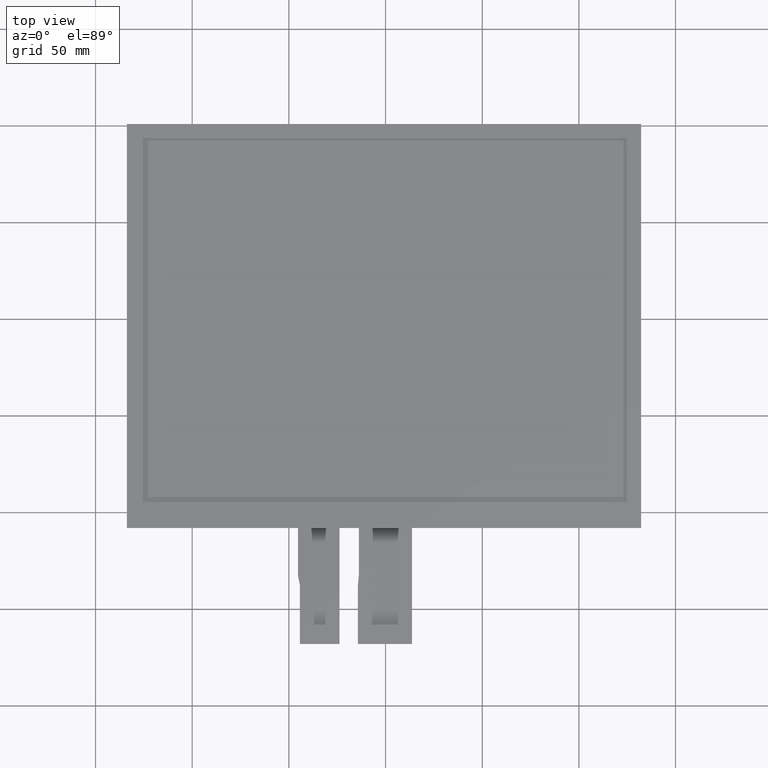
[diagram: clean part render]
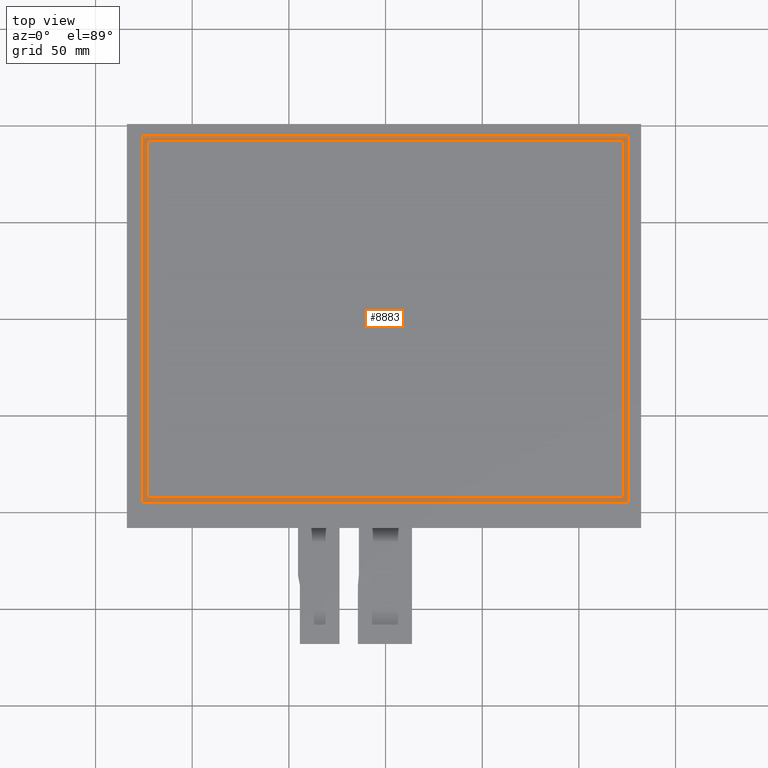
[diagram: same view with one face highlighted and labeled with its STEP entity id]
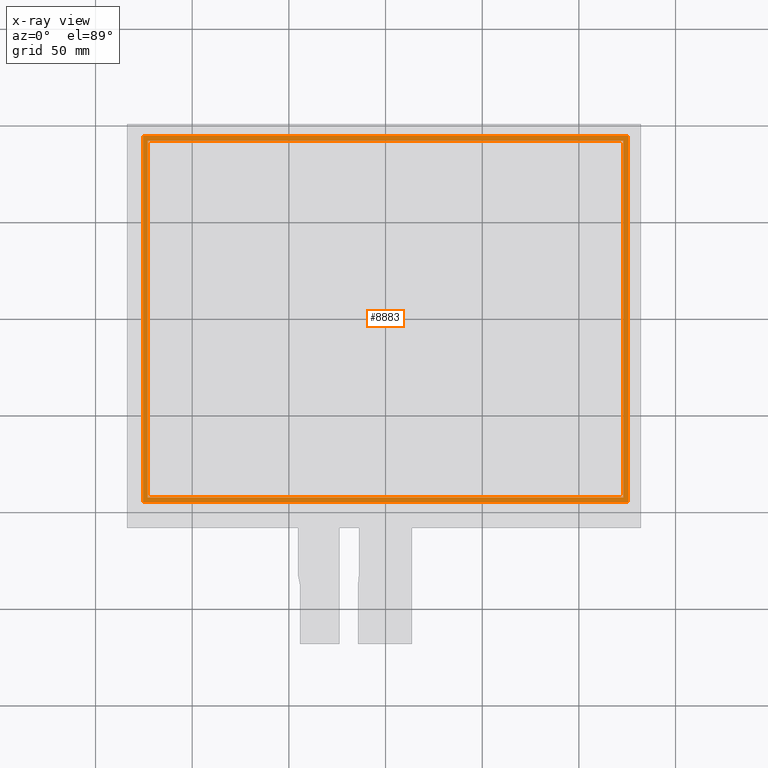
[diagram: x-ray of the same camera — body ghosted, the highlighted face saturated]
A machine part, top view. The second image highlights one B-rep face of the part: STEP entity #8883.
The next image is the same camera in x-ray: the body ghosted, the highlighted face saturated — about 0% of this face is hidden behind the body in this view.
In plain terms, the highlighted planar face has unit normal (0, 0, -1).
Its self-contained STEP definition (entity closure, byte-faithful):
#131=FACE_BOUND('',#1390,.T.);
#545=PLANE('',#9333);
#967=FACE_OUTER_BOUND('',#1389,.T.);
#1389=EDGE_LOOP('',(#8417,#8418,#8419,#8420));
#1390=EDGE_LOOP('',(#8421,#8422,#8423,#8424));
#2607=LINE('',#13877,#3847);
#2611=LINE('',#13884,#3851);
#2614=LINE('',#13890,#3854);
#2616=LINE('',#13893,#3856);
#2619=LINE('',#13901,#3859);
#2623=LINE('',#13908,#3863);
#2626=LINE('',#13914,#3866);
#2628=LINE('',#13917,#3868);
#3847=VECTOR('',#11379,10.);
#3851=VECTOR('',#11385,10.);
#3854=VECTOR('',#11390,10.);
#3856=VECTOR('',#11394,10.);
#3859=VECTOR('',#11399,10.);
#3863=VECTOR('',#11405,10.);
#3866=VECTOR('',#11410,10.);
#3868=VECTOR('',#11414,10.);
#4699=VERTEX_POINT('',#13874);
#4700=VERTEX_POINT('',#13876);
#4702=VERTEX_POINT('',#13882);
#4704=VERTEX_POINT('',#13888);
#4707=VERTEX_POINT('',#13898);
#4708=VERTEX_POINT('',#13900);
#4710=VERTEX_POINT('',#13906);
#4712=VERTEX_POINT('',#13912);
#5935=EDGE_CURVE('',#4699,#4700,#2607,.T.);
#5939=EDGE_CURVE('',#4702,#4699,#2611,.T.);
#5942=EDGE_CURVE('',#4704,#4702,#2614,.T.);
#5944=EDGE_CURVE('',#4700,#4704,#2616,.T.);
#5947=EDGE_CURVE('',#4707,#4708,#2619,.T.);
#5951=EDGE_CURVE('',#4710,#4707,#2623,.T.);
#5954=EDGE_CURVE('',#4712,#4710,#2626,.T.);
#5956=EDGE_CURVE('',#4708,#4712,#2628,.T.);
#8417=ORIENTED_EDGE('',*,*,#5956,.F.);
#8418=ORIENTED_EDGE('',*,*,#5947,.F.);
#8419=ORIENTED_EDGE('',*,*,#5951,.F.);
#8420=ORIENTED_EDGE('',*,*,#5954,.F.);
#8421=ORIENTED_EDGE('',*,*,#5944,.F.);
#8422=ORIENTED_EDGE('',*,*,#5935,.F.);
#8423=ORIENTED_EDGE('',*,*,#5939,.F.);
#8424=ORIENTED_EDGE('',*,*,#5942,.F.);
#8883=ADVANCED_FACE('',(#967,#131),#545,.F.);
#9333=AXIS2_PLACEMENT_3D('',#13918,#11415,#11416);
#11379=DIRECTION('',(1.,0.,0.));
#11385=DIRECTION('',(0.,-1.,0.));
#11390=DIRECTION('',(-1.,0.,0.));
#11394=DIRECTION('',(0.,1.,0.));
#11399=DIRECTION('',(-1.87577279767714E-16,1.,0.));
#11405=DIRECTION('',(-1.,-1.41655250350897E-16,0.));
#11410=DIRECTION('',(9.37886398838569E-17,-1.,0.));
#11414=DIRECTION('',(1.,0.,0.));
#11415=DIRECTION('center_axis',(0.,0.,-1.));
#11416=DIRECTION('ref_axis',(-1.,0.,0.));
#13874=CARTESIAN_POINT('',(-123.,-92.25,-0.1));
#13876=CARTESIAN_POINT('',(123.,-92.25,-0.1));
#13877=CARTESIAN_POINT('',(123.,-92.25,-0.1));
#13882=CARTESIAN_POINT('',(-123.,92.25,-0.1));
#13884=CARTESIAN_POINT('',(-123.,-92.25,-0.1));
#13888=CARTESIAN_POINT('',(123.,92.25,-0.1));
#13890=CARTESIAN_POINT('',(-123.,92.25,-0.1));
#13893=CARTESIAN_POINT('',(123.,92.25,-0.1));
#13898=CARTESIAN_POINT('',(-125.4,-94.65,-0.1));
#13900=CARTESIAN_POINT('',(-125.4,94.75,-0.1));
#13901=CARTESIAN_POINT('',(-125.4,94.75,-0.1));
#13906=CARTESIAN_POINT('',(125.4,-94.65,-0.1));
#13908=CARTESIAN_POINT('',(-125.4,-94.65,-0.1));
#13912=CARTESIAN_POINT('',(125.4,94.75,-0.1));
#13914=CARTESIAN_POINT('',(125.4,-94.65,-0.1));
#13917=CARTESIAN_POINT('',(125.4,94.75,-0.1));
#13918=CARTESIAN_POINT('Origin',(-1.77635683940025E-14,0.0500000000000078,
-0.1));